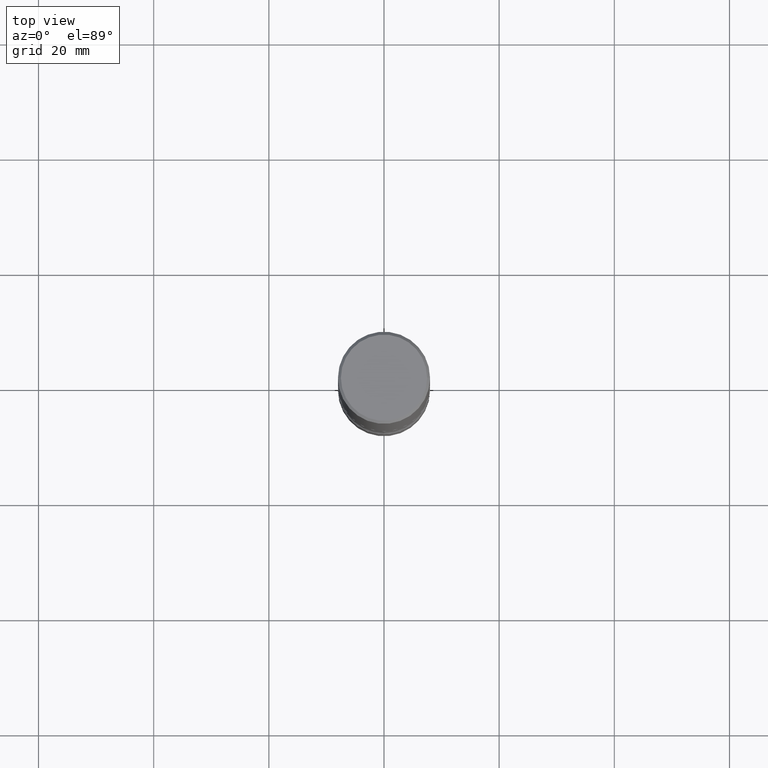
[diagram: clean part render]
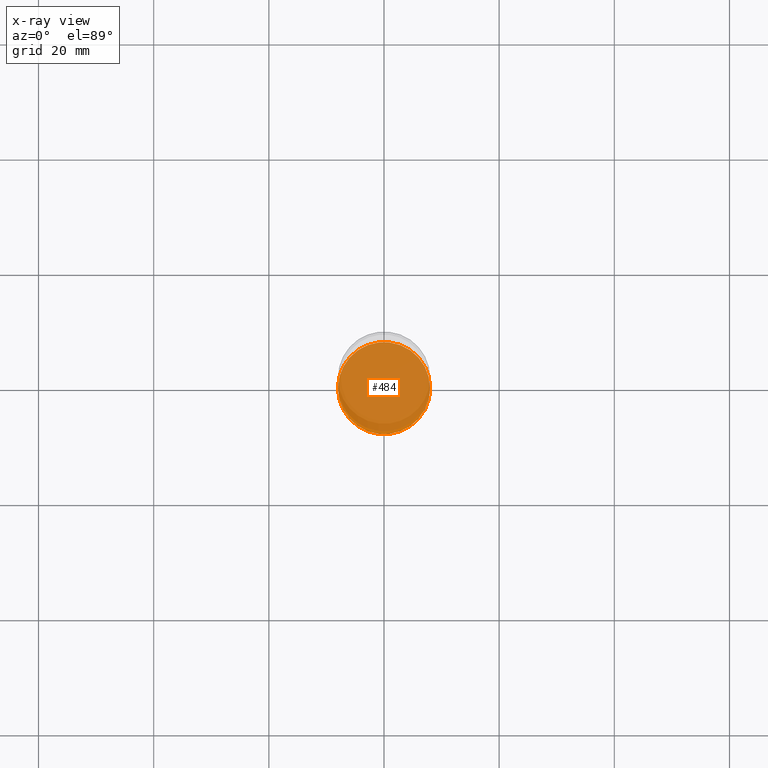
[diagram: x-ray — body ghosted, one internal face saturated and labeled with its STEP entity id]
A machine part, top view, then the same camera in x-ray: the body is ghosted and one INTERNAL B-rep face — a face not visible from any outside direction — is saturated and labeled: STEP entity #484.
In plain terms, the highlighted planar face has unit normal (0, -0, -1).
Its self-contained STEP definition (entity closure, byte-faithful):
#14 = DIRECTION ( 'NONE',  ( -2.445468806185136597E-29, 3.491481338843145583E-15, 1.000000000000000000 ) ) ;
#23 = PLANE ( 'NONE',  #337 ) ;
#90 = DIRECTION ( 'NONE',  ( -2.445468806185136597E-29, 3.491481338843145583E-15, 1.000000000000000000 ) ) ;
#122 = AXIS2_PLACEMENT_3D ( 'NONE', #380, #90, #464 ) ;
#165 = VERTEX_POINT ( 'NONE', #539 ) ;
#191 = DIRECTION ( 'NONE',  ( 2.438088387897960049E-29, -3.491481338843145188E-15, -1.000000000000000000 ) ) ;
#204 = ORIENTED_EDGE ( 'NONE', *, *, #312, .T. ) ;
#237 = FACE_OUTER_BOUND ( 'NONE', #267, .T. ) ;
#257 = CARTESIAN_POINT ( 'NONE',  ( 0.3149500000000001743, -1.663271880198097216E-14, -4.133899999999999686 ) ) ;
#266 = DIRECTION ( 'NONE',  ( 1.000000000000000000, -6.982962677686265922E-15, 0.000000000000000000 ) ) ;
#267 = EDGE_LOOP ( 'NONE', ( #204, #536 ) ) ;
#302 = CIRCLE ( 'NONE', #122, 0.3149500000000001743 ) ;
#312 = EDGE_CURVE ( 'NONE', #387, #165, #339, .T. ) ;
#337 = AXIS2_PLACEMENT_3D ( 'NONE', #453, #191, #361 ) ;
#339 = CIRCLE ( 'NONE', #535, 0.3149500000000001743 ) ;
#358 = CARTESIAN_POINT ( 'NONE',  ( 1.010932349788873450E-28, -1.443343470664368071E-14, -4.133899999999999686 ) ) ;
#361 = DIRECTION ( 'NONE',  ( -1.000000000000000000, 6.982962677686265922E-15, -4.876176775795935793E-29 ) ) ;
#380 = CARTESIAN_POINT ( 'NONE',  ( 1.010932349788873450E-28, -1.443343470664368071E-14, -4.133899999999999686 ) ) ;
#387 = VERTEX_POINT ( 'NONE', #257 ) ;
#397 = EDGE_CURVE ( 'NONE', #165, #387, #302, .T. ) ;
#453 = CARTESIAN_POINT ( 'NONE',  ( 1.010932349788873450E-28, -1.443343470664368071E-14, -4.133899999999999686 ) ) ;
#464 = DIRECTION ( 'NONE',  ( 1.000000000000000000, -6.982962677686265922E-15, 0.000000000000000000 ) ) ;
#484 = ADVANCED_FACE ( 'NONE', ( #237 ), #23, .F. ) ;
#535 = AXIS2_PLACEMENT_3D ( 'NONE', #358, #14, #266 ) ;
#536 = ORIENTED_EDGE ( 'NONE', *, *, #397, .T. ) ;
#539 = CARTESIAN_POINT ( 'NONE',  ( -0.3149500000000001743, -1.348777760387309294E-14, -4.133899999999999686 ) ) ;